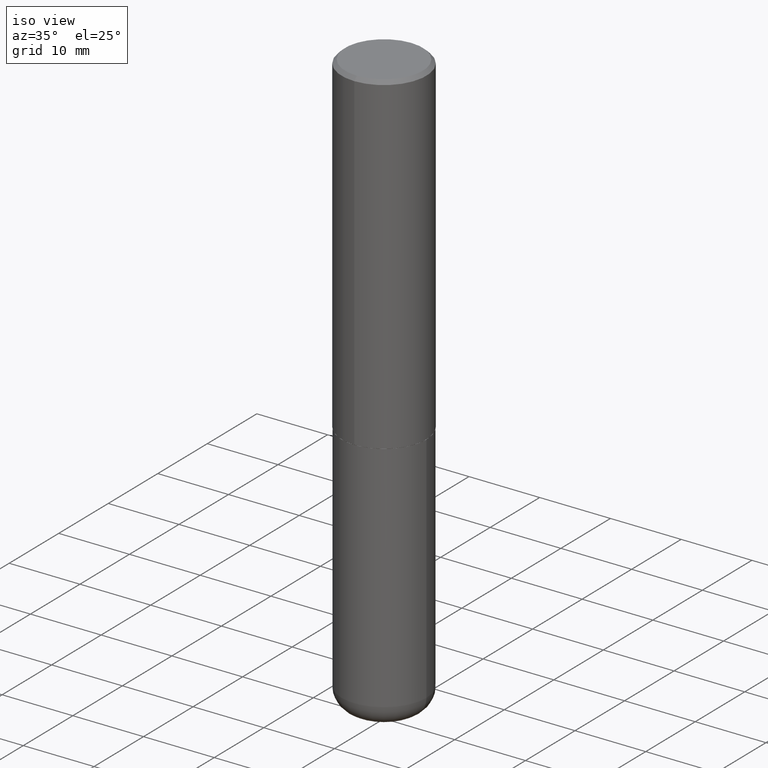
[diagram: clean part render]
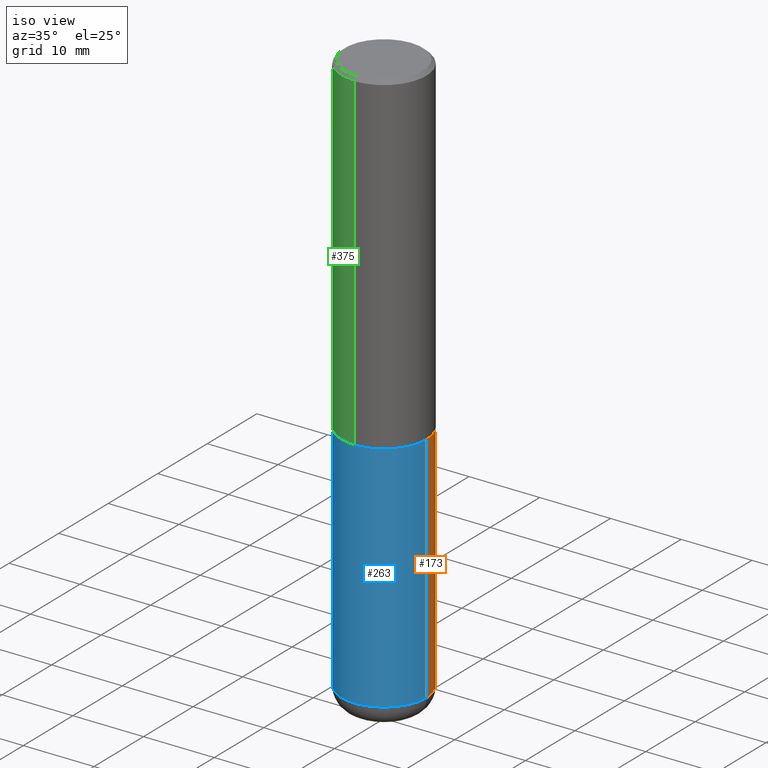
[diagram: same view with three faces highlighted in distinct colors, each labeled with its STEP entity id]
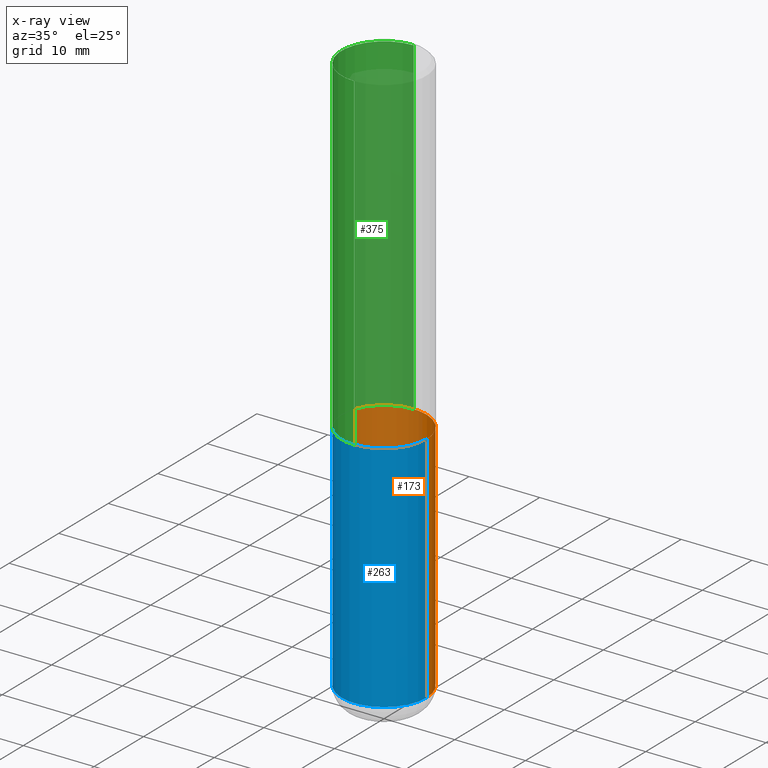
[diagram: x-ray of the same camera — body ghosted, the three highlighted faces saturated]
A machine part, iso view with three faces highlighted in distinct colors.
The next image is the same camera in x-ray (body ghosted, the three faces saturated) — at least one of them is partly hidden behind the body in this view.
Their STEP definitions:

[orange] entity #173 — the highlighted cylindrical surface (partial cylindrical patch) has radius 5.9995 mm, axis along (-0, 0, 1).
#2 = ORIENTED_EDGE ( 'NONE', *, *, #53, .T. ) ;
#4 = VERTEX_POINT ( 'NONE', #107 ) ;
#14 = AXIS2_PLACEMENT_3D ( 'NONE', #336, #371, #275 ) ;
#47 = CARTESIAN_POINT ( 'NONE',  ( 7.702248551960706711E-29, -1.099676962482037231E-14, -3.149600000000000399 ) ) ;
#48 = DIRECTION ( 'NONE',  ( -2.445468806185136877E-29, 3.491481338843145188E-15, 1.000000000000000000 ) ) ;
#49 = CARTESIAN_POINT ( 'NONE',  ( -0.2361999999999998823, -9.318467682955017493E-15, -3.149600000000000399 ) ) ;
#53 = EDGE_CURVE ( 'NONE', #4, #57, #333, .T. ) ;
#57 = VERTEX_POINT ( 'NONE', #49 ) ;
#74 = ORIENTED_EDGE ( 'NONE', *, *, #178, .F. ) ;
#89 = FACE_OUTER_BOUND ( 'NONE', #261, .T. ) ;
#107 = CARTESIAN_POINT ( 'NONE',  ( 0.2361999999999998823, -1.264614540928986883E-14, -3.149600000000000399 ) ) ;
#117 = LINE ( 'NONE', #376, #139 ) ;
#130 = VERTEX_POINT ( 'NONE', #344 ) ;
#139 = VECTOR ( 'NONE', #213, 39.37007874015748143 ) ;
#159 = CARTESIAN_POINT ( 'NONE',  ( 0.000000000000000000, 0.000000000000000000, 0.000000000000000000 ) ) ;
#166 = CARTESIAN_POINT ( 'NONE',  ( -0.2361999999999999933, -7.050401405242508548E-15, -1.850400000000000267 ) ) ;
#172 = DIRECTION ( 'NONE',  ( -2.445468806185136597E-29, 3.491481338843145583E-15, 1.000000000000000000 ) ) ;
#173 = ADVANCED_FACE ( 'NONE', ( #89 ), #354, .T. ) ;
#178 = EDGE_CURVE ( 'NONE', #4, #130, #117, .T. ) ;
#213 = DIRECTION ( 'NONE',  ( -2.445468806185136877E-29, 3.491481338843145188E-15, 1.000000000000000000 ) ) ;
#248 = DIRECTION ( 'NONE',  ( 1.000000000000000000, -6.982962677686266711E-15, 4.876176775795936353E-29 ) ) ;
#249 = VERTEX_POINT ( 'NONE', #166 ) ;
#252 = ORIENTED_EDGE ( 'NONE', *, *, #382, .F. ) ;
#261 = EDGE_LOOP ( 'NONE', ( #2, #282, #252, #74 ) ) ;
#270 = CARTESIAN_POINT ( 'NONE',  ( -0.2361999999999999933, 1.678301941865356591E-15, -1.161852468318208757E-29 ) ) ;
#272 = CIRCLE ( 'NONE', #14, 0.2361999999999999933 ) ;
#275 = DIRECTION ( 'NONE',  ( 1.000000000000000000, -6.982962677686269077E-15, 0.000000000000000000 ) ) ;
#280 = AXIS2_PLACEMENT_3D ( 'NONE', #159, #410, #248 ) ;
#282 = ORIENTED_EDGE ( 'NONE', *, *, #343, .T. ) ;
#305 = DIRECTION ( 'NONE',  ( 1.000000000000000000, -6.982962677686264344E-15, 0.000000000000000000 ) ) ;
#333 = CIRCLE ( 'NONE', #368, 0.2362000000000000210 ) ;
#336 = CARTESIAN_POINT ( 'NONE',  ( 4.525095478964977394E-29, -6.460637069395357576E-15, -1.850400000000000267 ) ) ;
#343 = EDGE_CURVE ( 'NONE', #57, #249, #407, .T. ) ;
#344 = CARTESIAN_POINT ( 'NONE',  ( 0.2361999999999999933, -8.110012853864854101E-15, -1.850400000000000267 ) ) ;
#354 = CYLINDRICAL_SURFACE ( 'NONE', #280, 0.2361999999999999933 ) ;
#368 = AXIS2_PLACEMENT_3D ( 'NONE', #47, #172, #305 ) ;
#371 = DIRECTION ( 'NONE',  ( -2.445468806185136597E-29, 3.491481338843145583E-15, 1.000000000000000000 ) ) ;
#376 = CARTESIAN_POINT ( 'NONE',  ( 0.2361999999999999933, -1.649375784469496131E-15, 1.151752954443000088E-29 ) ) ;
#382 = EDGE_CURVE ( 'NONE', #130, #249, #272, .T. ) ;
#404 = VECTOR ( 'NONE', #48, 39.37007874015748143 ) ;
#407 = LINE ( 'NONE', #270, #404 ) ;
#410 = DIRECTION ( 'NONE',  ( -2.445468806185136597E-29, 3.491481338843145583E-15, 1.000000000000000000 ) ) ;

[blue] entity #263 — the highlighted cylindrical surface (partial cylindrical patch) has radius 5.9995 mm, axis along (-0, 0, 1).
#4 = VERTEX_POINT ( 'NONE', #107 ) ;
#5 = DIRECTION ( 'NONE',  ( 1.000000000000000000, -6.982962677686264344E-15, 0.000000000000000000 ) ) ;
#8 = AXIS2_PLACEMENT_3D ( 'NONE', #108, #364, #164 ) ;
#19 = CIRCLE ( 'NONE', #374, 0.2361999999999999933 ) ;
#20 = EDGE_LOOP ( 'NONE', ( #152, #415, #290, #102 ) ) ;
#48 = DIRECTION ( 'NONE',  ( -2.445468806185136877E-29, 3.491481338843145188E-15, 1.000000000000000000 ) ) ;
#49 = CARTESIAN_POINT ( 'NONE',  ( -0.2361999999999998823, -9.318467682955017493E-15, -3.149600000000000399 ) ) ;
#57 = VERTEX_POINT ( 'NONE', #49 ) ;
#82 = DIRECTION ( 'NONE',  ( -2.445468806185136597E-29, 3.491481338843145583E-15, 1.000000000000000000 ) ) ;
#83 = DIRECTION ( 'NONE',  ( 1.000000000000000000, -6.982962677686269077E-15, 0.000000000000000000 ) ) ;
#102 = ORIENTED_EDGE ( 'NONE', *, *, #408, .F. ) ;
#107 = CARTESIAN_POINT ( 'NONE',  ( 0.2361999999999998823, -1.264614540928986883E-14, -3.149600000000000399 ) ) ;
#108 = CARTESIAN_POINT ( 'NONE',  ( 0.000000000000000000, 0.000000000000000000, 0.000000000000000000 ) ) ;
#117 = LINE ( 'NONE', #376, #139 ) ;
#130 = VERTEX_POINT ( 'NONE', #344 ) ;
#134 = CYLINDRICAL_SURFACE ( 'NONE', #8, 0.2361999999999999933 ) ;
#139 = VECTOR ( 'NONE', #213, 39.37007874015748143 ) ;
#152 = ORIENTED_EDGE ( 'NONE', *, *, #343, .F. ) ;
#162 = CARTESIAN_POINT ( 'NONE',  ( 7.702248551960706711E-29, -1.099676962482037231E-14, -3.149600000000000399 ) ) ;
#164 = DIRECTION ( 'NONE',  ( 1.000000000000000000, -6.982962677686266711E-15, 4.876176775795936353E-29 ) ) ;
#166 = CARTESIAN_POINT ( 'NONE',  ( -0.2361999999999999933, -7.050401405242508548E-15, -1.850400000000000267 ) ) ;
#171 = CARTESIAN_POINT ( 'NONE',  ( 4.525095478964977394E-29, -6.460637069395357576E-15, -1.850400000000000267 ) ) ;
#178 = EDGE_CURVE ( 'NONE', #4, #130, #117, .T. ) ;
#202 = EDGE_CURVE ( 'NONE', #57, #4, #411, .T. ) ;
#213 = DIRECTION ( 'NONE',  ( -2.445468806185136877E-29, 3.491481338843145188E-15, 1.000000000000000000 ) ) ;
#249 = VERTEX_POINT ( 'NONE', #166 ) ;
#263 = ADVANCED_FACE ( 'NONE', ( #300 ), #134, .T. ) ;
#270 = CARTESIAN_POINT ( 'NONE',  ( -0.2361999999999999933, 1.678301941865356591E-15, -1.161852468318208757E-29 ) ) ;
#290 = ORIENTED_EDGE ( 'NONE', *, *, #178, .T. ) ;
#300 = FACE_OUTER_BOUND ( 'NONE', #20, .T. ) ;
#328 = DIRECTION ( 'NONE',  ( -2.445468806185136597E-29, 3.491481338843145583E-15, 1.000000000000000000 ) ) ;
#332 = AXIS2_PLACEMENT_3D ( 'NONE', #162, #328, #5 ) ;
#343 = EDGE_CURVE ( 'NONE', #57, #249, #407, .T. ) ;
#344 = CARTESIAN_POINT ( 'NONE',  ( 0.2361999999999999933, -8.110012853864854101E-15, -1.850400000000000267 ) ) ;
#364 = DIRECTION ( 'NONE',  ( -2.445468806185136597E-29, 3.491481338843145583E-15, 1.000000000000000000 ) ) ;
#374 = AXIS2_PLACEMENT_3D ( 'NONE', #171, #82, #83 ) ;
#376 = CARTESIAN_POINT ( 'NONE',  ( 0.2361999999999999933, -1.649375784469496131E-15, 1.151752954443000088E-29 ) ) ;
#404 = VECTOR ( 'NONE', #48, 39.37007874015748143 ) ;
#407 = LINE ( 'NONE', #270, #404 ) ;
#408 = EDGE_CURVE ( 'NONE', #249, #130, #19, .T. ) ;
#411 = CIRCLE ( 'NONE', #332, 0.2362000000000000210 ) ;
#415 = ORIENTED_EDGE ( 'NONE', *, *, #202, .T. ) ;

[green] entity #375 — the highlighted cylindrical surface (partial cylindrical patch) has radius 5.9995 mm, axis along (-0, 0, 1).
#11 = FACE_OUTER_BOUND ( 'NONE', #294, .T. ) ;
#15 = DIRECTION ( 'NONE',  ( -2.445371925614294233E-29, 3.491620077334691546E-15, 1.000000000000000000 ) ) ;
#30 = AXIS2_PLACEMENT_3D ( 'NONE', #70, #100, #198 ) ;
#39 = AXIS2_PLACEMENT_3D ( 'NONE', #370, #402, #330 ) ;
#51 = CYLINDRICAL_SURFACE ( 'NONE', #39, 0.2362000000000001043 ) ;
#61 = VERTEX_POINT ( 'NONE', #84 ) ;
#70 = CARTESIAN_POINT ( 'NONE',  ( 4.890743851228601113E-31, -6.983240154669400497E-17, -0.02000000000000005246 ) ) ;
#77 = DIRECTION ( 'NONE',  ( -2.445371925614294233E-29, 3.491620077334691546E-15, 1.000000000000000000 ) ) ;
#80 = AXIS2_PLACEMENT_3D ( 'NONE', #338, #114, #81 ) ;
#81 = DIRECTION ( 'NONE',  ( -6.982962677686265133E-15, -1.000000000000000000, 3.469747663417773847E-15 ) ) ;
#84 = CARTESIAN_POINT ( 'NONE',  ( -1.620449627073635079E-15, -0.2362000000000000766, -0.01999999999999922673 ) ) ;
#86 = LINE ( 'NONE', #206, #218 ) ;
#100 = DIRECTION ( 'NONE',  ( -2.445371925614294233E-29, 3.491620077334691546E-15, 1.000000000000000000 ) ) ;
#114 = DIRECTION ( 'NONE',  ( -2.445371925614294233E-29, 3.491620077334691546E-15, 1.000000000000000000 ) ) ;
#116 = CARTESIAN_POINT ( 'NONE',  ( 1.678301941865357183E-15, 0.2362000000000001043, -8.247206622664545710E-16 ) ) ;
#124 = VERTEX_POINT ( 'NONE', #192 ) ;
#160 = ORIENTED_EDGE ( 'NONE', *, *, #363, .F. ) ;
#192 = CARTESIAN_POINT ( 'NONE',  ( -1.649375784469452349E-15, -0.2362000000000066546, -1.849399999999999489 ) ) ;
#193 = VERTEX_POINT ( 'NONE', #325 ) ;
#195 = CIRCLE ( 'NONE', #80, 0.2362000000000002153 ) ;
#198 = DIRECTION ( 'NONE',  ( -6.982962677686265922E-15, -1.000000000000000000, 3.487819265831411744E-15 ) ) ;
#205 = VECTOR ( 'NONE', #77, 39.37007874015748143 ) ;
#206 = CARTESIAN_POINT ( 'NONE',  ( -1.649375784469496722E-15, -0.2362000000000001043, 8.247206622664545710E-16 ) ) ;
#208 = CARTESIAN_POINT ( 'NONE',  ( 1.678301941865380454E-15, 0.2361999999999937760, -1.849400000000001043 ) ) ;
#218 = VECTOR ( 'NONE', #15, 39.37007874015748143 ) ;
#241 = LINE ( 'NONE', #116, #205 ) ;
#243 = EDGE_CURVE ( 'NONE', #193, #61, #245, .T. ) ;
#245 = CIRCLE ( 'NONE', #30, 0.2361999999999999933 ) ;
#259 = ORIENTED_EDGE ( 'NONE', *, *, #243, .F. ) ;
#294 = EDGE_LOOP ( 'NONE', ( #160, #347, #388, #259 ) ) ;
#295 = EDGE_CURVE ( 'NONE', #418, #124, #195, .T. ) ;
#325 = CARTESIAN_POINT ( 'NONE',  ( 1.649375784469496525E-15, 0.2361999999999999378, -0.02000000000000087472 ) ) ;
#330 = DIRECTION ( 'NONE',  ( -6.982962677686265922E-15, -1.000000000000000000, 3.491620077334691941E-15 ) ) ;
#338 = CARTESIAN_POINT ( 'NONE',  ( 4.522470839231075964E-29, -6.457402171022779437E-15, -1.849400000000000155 ) ) ;
#347 = ORIENTED_EDGE ( 'NONE', *, *, #295, .T. ) ;
#357 = EDGE_CURVE ( 'NONE', #124, #61, #86, .T. ) ;
#363 = EDGE_CURVE ( 'NONE', #418, #193, #241, .T. ) ;
#370 = CARTESIAN_POINT ( 'NONE',  ( 0.000000000000000000, 0.000000000000000000, 0.000000000000000000 ) ) ;
#375 = ADVANCED_FACE ( 'NONE', ( #11 ), #51, .T. ) ;
#388 = ORIENTED_EDGE ( 'NONE', *, *, #357, .T. ) ;
#402 = DIRECTION ( 'NONE',  ( -2.445371925614294233E-29, 3.491620077334691546E-15, 1.000000000000000000 ) ) ;
#418 = VERTEX_POINT ( 'NONE', #208 ) ;